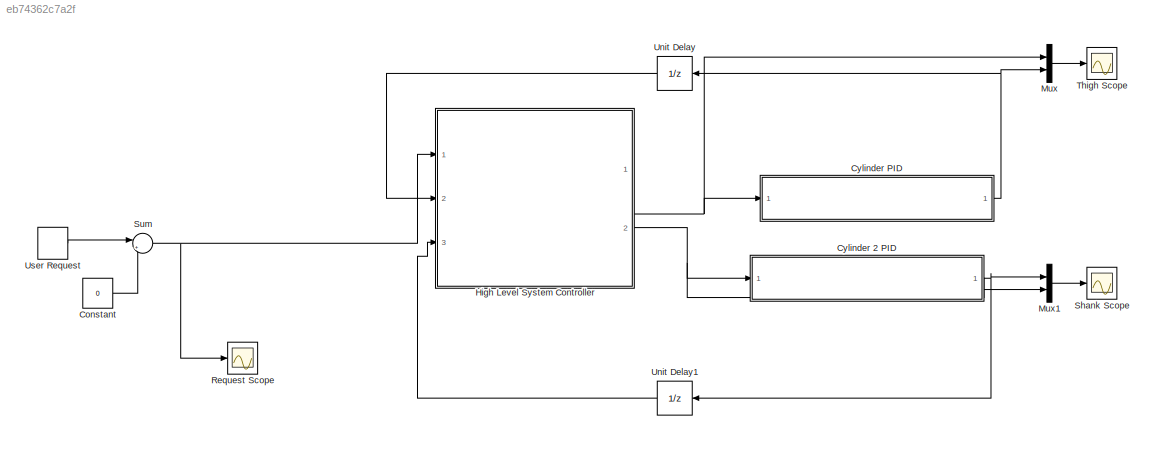
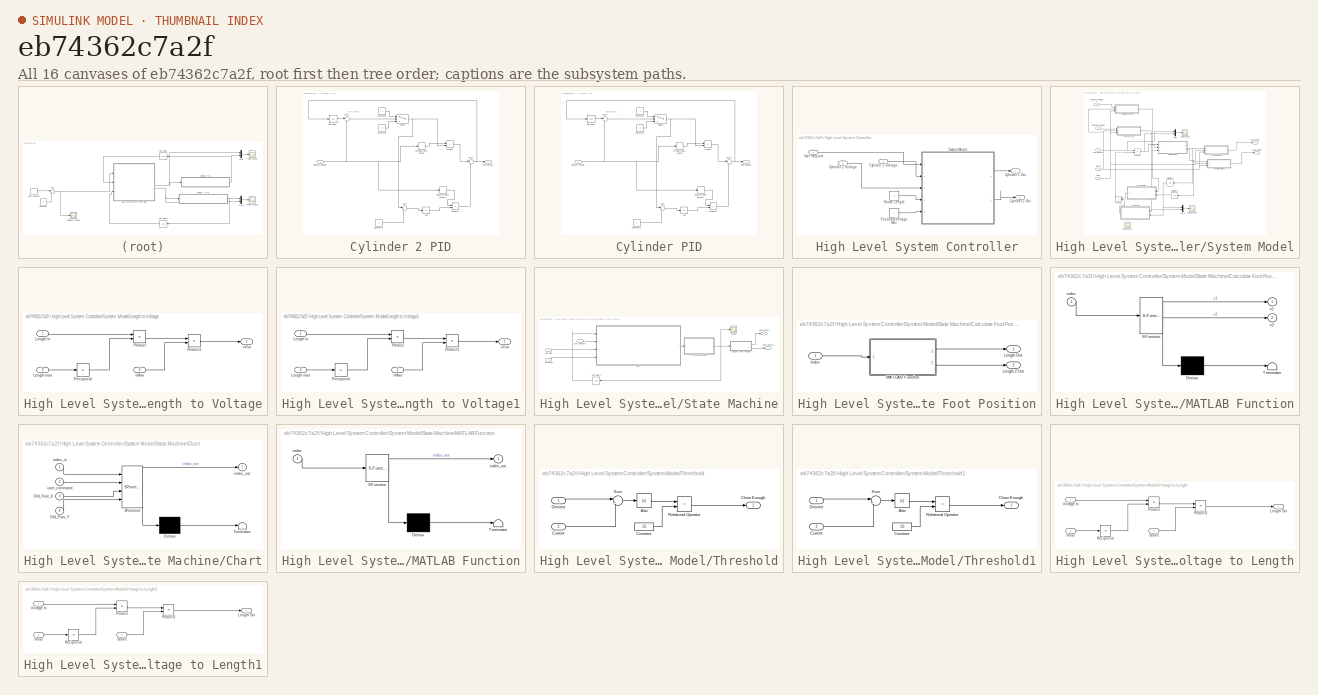
[diagram: thumbnail index - all 16 canvases of the model, root first then tree order]
MODEL slx_eb74362c7a2f
KIND model
BLOCK [Constant] Constant
  Value = 0
BLOCK [SubSystem] Cylinder 2 PID
  Ports = [1, 1]
  RequestExecContextInheritance = off
BLOCK [Abs] Cylinder 2 PID/Abs
  SaturateOnIntegerOverflow = off
BLOCK [Constant] Cylinder 2 PID/Constant1
BLOCK [Constant] Cylinder 2 PID/Constant2
  Value = 0
BLOCK [Constant] Cylinder 2 PID/Constant3
BLOCK [Inport] Cylinder 2 PID/Desired Voltage
  IconDisplay = Port number
BLOCK [Outport] Cylinder 2 PID/Final Voltage
  IconDisplay = Port number
BLOCK [RateLimiter] Cylinder 2 PID/Forward Rate Limiter
  FallingSlewLimit = -0.0015
  RisingSlewLimit = 0.0015
  SampleTimeMode = inherited
BLOCK [Product] Cylinder 2 PID/Product
  InputSameDT = off
  OutDataTypeStr = Inherit: Inherit via internal rule
  Ports = [2, 1]
  RndMeth = Floor
  SaturateOnIntegerOverflow = off
BLOCK [Product] Cylinder 2 PID/Product1
  InputSameDT = off
  OutDataTypeStr = Inherit: Inherit via internal rule
  Ports = [2, 1]
  RndMeth = Floor
  SaturateOnIntegerOverflow = off
BLOCK [RateLimiter] Cylinder 2 PID/Reverse Rate Limiter1
  FallingSlewLimit = -0.015
  RisingSlewLimit = 0.015
  SampleTimeMode = inherited
BLOCK [Sum] Cylinder 2 PID/Sum
  IconShape = round
  InputSameDT = off
  Inputs = |+-
  OutDataTypeStr = Inherit: Inherit via internal rule
  Ports = [2, 1]
  SaturateOnIntegerOverflow = off
BLOCK [Sum] Cylinder 2 PID/Sum1
  IconShape = round
  InputSameDT = off
  Inputs = |-+
  OutDataTypeStr = Inherit: Inherit via internal rule
  Ports = [2, 1]
  SaturateOnIntegerOverflow = off
BLOCK [Sum] Cylinder 2 PID/Sum2
  IconShape = round
  InputSameDT = off
  Inputs = |++
  OutDataTypeStr = Inherit: Inherit via internal rule
  Ports = [2, 1]
  SaturateOnIntegerOverflow = off
BLOCK [Switch] Cylinder 2 PID/Switch
  InputSameDT = off
  SaturateOnIntegerOverflow = off
BLOCK [UnitDelay] Cylinder 2 PID/Unit Delay
  InputProcessing = Elements as channels (sample based)
  SampleTime = -1
BLOCK [SubSystem] Cylinder PID
  Ports = [1, 1]
  RequestExecContextInheritance = off
BLOCK [Abs] Cylinder PID/Abs
  SaturateOnIntegerOverflow = off
BLOCK [Constant] Cylinder PID/Constant1
BLOCK [Constant] Cylinder PID/Constant2
  Value = 0
BLOCK [Constant] Cylinder PID/Constant3
BLOCK [Inport] Cylinder PID/Desired Voltage
  IconDisplay = Port number
BLOCK [Outport] Cylinder PID/Final Voltage
  IconDisplay = Port number
BLOCK [RateLimiter] Cylinder PID/Forward Rate Limiter
  FallingSlewLimit = -0.0015
  RisingSlewLimit = 0.0015
  SampleTimeMode = inherited
BLOCK [Product] Cylinder PID/Product
  InputSameDT = off
  OutDataTypeStr = Inherit: Inherit via internal rule
  Ports = [2, 1]
  RndMeth = Floor
  SaturateOnIntegerOverflow = off
BLOCK [Product] Cylinder PID/Product1
  InputSameDT = off
  OutDataTypeStr = Inherit: Inherit via internal rule
  Ports = [2, 1]
  RndMeth = Floor
  SaturateOnIntegerOverflow = off
BLOCK [RateLimiter] Cylinder PID/Reverse Rate Limiter1
  FallingSlewLimit = -0.05
  RisingSlewLimit = 0.05
  SampleTimeMode = inherited
BLOCK [Sum] Cylinder PID/Sum
  IconShape = round
  InputSameDT = off
  Inputs = |+-
  OutDataTypeStr = Inherit: Inherit via internal rule
  Ports = [2, 1]
  SaturateOnIntegerOverflow = off
BLOCK [Sum] Cylinder PID/Sum1
  IconShape = round
  InputSameDT = off
  Inputs = |-+
  OutDataTypeStr = Inherit: Inherit via internal rule
  Ports = [2, 1]
  SaturateOnIntegerOverflow = off
BLOCK [Sum] Cylinder PID/Sum2
  IconShape = round
  InputSameDT = off
  Inputs = |++
  OutDataTypeStr = Inherit: Inherit via internal rule
  Ports = [2, 1]
  SaturateOnIntegerOverflow = off
BLOCK [Switch] Cylinder PID/Switch
  InputSameDT = off
  SaturateOnIntegerOverflow = off
BLOCK [UnitDelay] Cylinder PID/Unit Delay
  InputProcessing = Elements as channels (sample based)
  SampleTime = -1
BLOCK [SubSystem] High Level System Controller
  Ports = [3, 2]
  RequestExecContextInheritance = off
BLOCK [Outport] High Level System Controller/Cylinder 1 Out
  IconDisplay = Port number
BLOCK [Inport] High Level System Controller/Cylinder 1 Voltage
  IconDisplay = Port number
  OutDataTypeStr = double
  Port = 2
BLOCK [Outport] High Level System Controller/Cylinder 2 Out
  IconDisplay = Port number
  Port = 2
BLOCK [Inport] High Level System Controller/Cylinder 2 Voltage
  IconDisplay = Port number
  OutDataTypeStr = double
  Port = 3
BLOCK [Constant] High Level System Controller/Feedback Voltage Max
  Value = 4
BLOCK [Constant] High Level System Controller/Stroke Length
  Value = 3
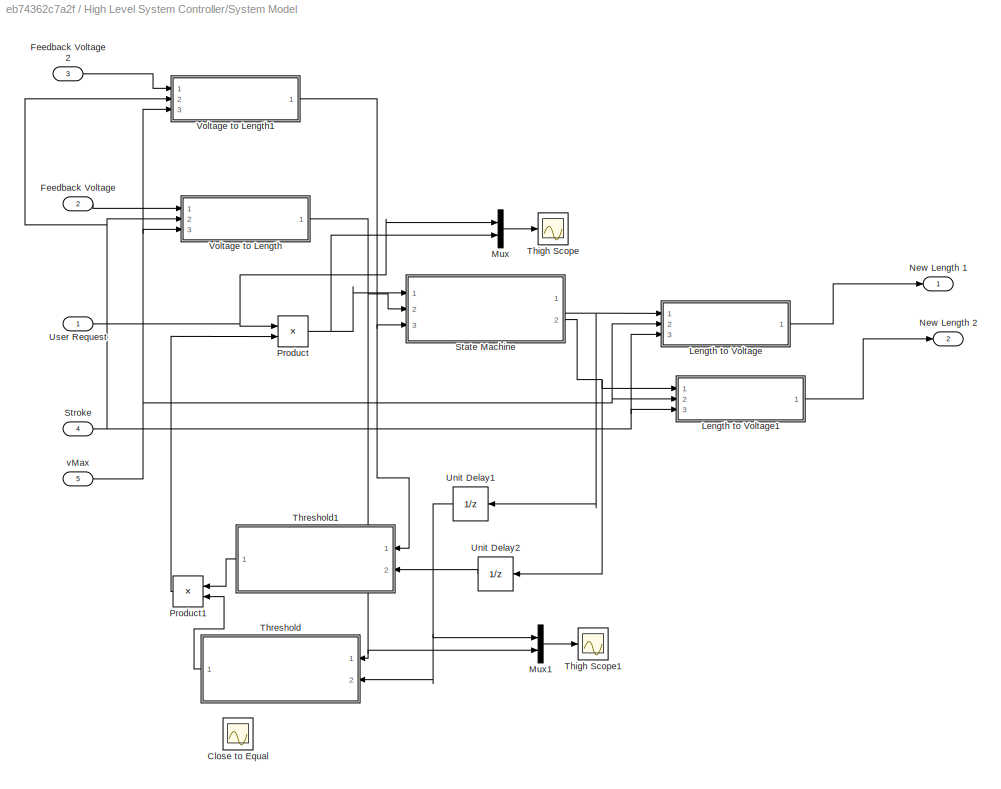
BLOCK [SubSystem] High Level System Controller/System Model
  Ports = [5, 2]
  RequestExecContextInheritance = off
BLOCK [Scope] High Level System Controller/System Model/Close to Equal
  Floating = off
  LimitDataPoints = off
  NumInputPorts = 1
  Ports = [1]
  SaveName = ScopeData5
  ShowLegends = off
  TimeRange = 1
  YMax = 2.8
  YMin = 2.53334
  ZoomMode = xonly
BLOCK [Inport] High Level System Controller/System Model/Feedback Voltage
  IconDisplay = Port number
  Port = 2
BLOCK [Inport] High Level System Controller/System Model/Feedback Voltage 2
  IconDisplay = Port number
  Port = 3
BLOCK [SubSystem] High Level System Controller/System Model/Length to Voltage
  Ports = [3, 1]
  RequestExecContextInheritance = off
BLOCK [Inport] High Level System Controller/System Model/Length to Voltage/Length In
  IconDisplay = Port number
BLOCK [Inport] High Level System Controller/System Model/Length to Voltage/Length max
  IconDisplay = Port number
  Port = 3
BLOCK [Product] High Level System Controller/System Model/Length to Voltage/Product
  InputSameDT = off
  Ports = [2, 1]
  RndMeth = Floor
  SaturateOnIntegerOverflow = off
BLOCK [Product] High Level System Controller/System Model/Length to Voltage/Product1
  InputSameDT = off
  Ports = [2, 1]
  RndMeth = Floor
  SaturateOnIntegerOverflow = off
BLOCK [Product] High Level System Controller/System Model/Length to Voltage/Reciprocal
  InputSameDT = off
  Inputs = /
  OutDataTypeStr = Inherit: Inherit via internal rule
  Ports = [1, 1]
BLOCK [Inport] High Level System Controller/System Model/Length to Voltage/vMax
  IconDisplay = Port number
  Port = 2
BLOCK [Outport] High Level System Controller/System Model/Length to Voltage/vOut
  IconDisplay = Port number
BLOCK [SubSystem] High Level System Controller/System Model/Length to Voltage1
  Ports = [3, 1]
  RequestExecContextInheritance = off
BLOCK [Inport] High Level System Controller/System Model/Length to Voltage1/Length In
  IconDisplay = Port number
BLOCK [Inport] High Level System Controller/System Model/Length to Voltage1/Length max
  IconDisplay = Port number
  Port = 3
BLOCK [Product] High Level System Controller/System Model/Length to Voltage1/Product
  InputSameDT = off
  Ports = [2, 1]
  RndMeth = Floor
  SaturateOnIntegerOverflow = off
BLOCK [Product] High Level System Controller/System Model/Length to Voltage1/Product1
  InputSameDT = off
  Ports = [2, 1]
  RndMeth = Floor
  SaturateOnIntegerOverflow = off
BLOCK [Product] High Level System Controller/System Model/Length to Voltage1/Reciprocal
  InputSameDT = off
  Inputs = /
  OutDataTypeStr = Inherit: Inherit via internal rule
  Ports = [1, 1]
BLOCK [Inport] High Level System Controller/System Model/Length to Voltage1/vMax
  IconDisplay = Port number
  Port = 2
BLOCK [Outport] High Level System Controller/System Model/Length to Voltage1/vOut
  IconDisplay = Port number
BLOCK [Mux] High Level System Controller/System Model/Mux
  DisplayOption = bar
  Inputs = 2
  Ports = [2, 1]
BLOCK [Mux] High Level System Controller/System Model/Mux1
  DisplayOption = bar
  Inputs = 2
  Ports = [2, 1]
BLOCK [Outport] High Level System Controller/System Model/New Length 1
  IconDisplay = Port number
  OutDataTypeStr = double
BLOCK [Outport] High Level System Controller/System Model/New Length 2
  IconDisplay = Port number
  OutDataTypeStr = double
  Port = 2
BLOCK [Product] High Level System Controller/System Model/Product
  InputSameDT = off
  OutDataTypeStr = Inherit: Inherit via internal rule
  Ports = [2, 1]
  RndMeth = Floor
  SaturateOnIntegerOverflow = off
BLOCK [Product] High Level System Controller/System Model/Product1
  InputSameDT = off
  OutDataTypeStr = Inherit: Inherit via internal rule
  Ports = [2, 1]
  RndMeth = Floor
  SaturateOnIntegerOverflow = off
BLOCK [SubSystem] High Level System Controller/System Model/State Machine
  Ports = [3, 2]
  RequestExecContextInheritance = off
BLOCK [SubSystem] High Level System Controller/System Model/State Machine/Calculate Foot Position
  Ports = [1, 2]
  RequestExecContextInheritance = off
BLOCK [Inport] High Level System Controller/System Model/State Machine/Calculate Foot Position/Index
  IconDisplay = Port number
BLOCK [Outport] High Level System Controller/System Model/State Machine/Calculate Foot Position/Length 2 Out
  IconDisplay = Port number
  Port = 2
BLOCK [Outport] High Level System Controller/System Model/State Machine/Calculate Foot Position/Length Out
  IconDisplay = Port number
BLOCK [SubSystem] High Level System Controller/System Model/State Machine/Calculate Foot Position/MATLAB Function
  ErrorFcn = Stateflow.Translate.translate
  PermitHierarchicalResolution = ExplicitOnly
  Ports = [1, 2]
  RequestExecContextInheritance = off
  SFBlockType = MATLAB Function
  TreatAsAtomicUnit = on
BLOCK [Demux] High Level System Controller/System Model/State Machine/Calculate Foot Position/MATLAB Function/ Demux 
  Outputs = 1
  Ports = [1, 1]
BLOCK [S-Function] High Level System Controller/System Model/State Machine/Calculate Foot Position/MATLAB Function/ SFunction 
  EnableBusSupport = on
  FunctionName = sf_sfun
  PortCounts = [1 3]
  Ports = [1, 3]
  Tag = Stateflow S-Function Simulation 1
BLOCK [Terminator] High Level System Controller/System Model/State Machine/Calculate Foot Position/MATLAB Function/ Terminator 
BLOCK [Inport] High Level System Controller/System Model/State Machine/Calculate Foot Position/MATLAB Function/index
  IconDisplay = Port number
BLOCK [Outport] High Level System Controller/System Model/State Machine/Calculate Foot Position/MATLAB Function/x1
  IconDisplay = Port number
BLOCK [Outport] High Level System Controller/System Model/State Machine/Calculate Foot Position/MATLAB Function/x2
  IconDisplay = Port number
  Port = 2
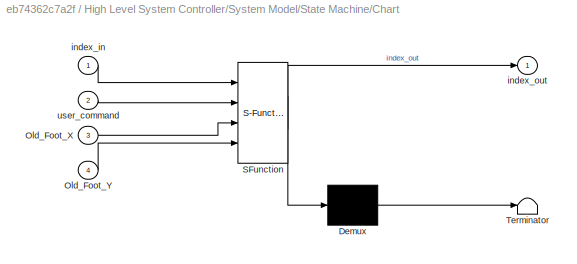
BLOCK [SubSystem] High Level System Controller/System Model/State Machine/Chart
  ErrorFcn = Stateflow.Translate.translate
  PermitHierarchicalResolution = ExplicitOnly
  Ports = [4, 1]
  RequestExecContextInheritance = off
  SFBlockType = Chart
  TreatAsAtomicUnit = on
BLOCK [Demux] High Level System Controller/System Model/State Machine/Chart/ Demux 
  Outputs = 1
  Ports = [1, 1]
BLOCK [S-Function] High Level System Controller/System Model/State Machine/Chart/ SFunction 
  EnableBusSupport = on
  FunctionName = sf_sfun
  PortCounts = [4 2]
  Ports = [4, 2]
  Tag = Stateflow S-Function Simulation 3
BLOCK [Terminator] High Level System Controller/System Model/State Machine/Chart/ Terminator 
BLOCK [Inport] High Level System Controller/System Model/State Machine/Chart/Old_Foot_X
  IconDisplay = Port number
  Port = 3
BLOCK [Inport] High Level System Controller/System Model/State Machine/Chart/Old_Foot_Y
  IconDisplay = Port number
  Port = 4
BLOCK [Inport] High Level System Controller/System Model/State Machine/Chart/index_in
  IconDisplay = Port number
BLOCK [Outport] High Level System Controller/System Model/State Machine/Chart/index_out
  IconDisplay = Port number
BLOCK [Inport] High Level System Controller/System Model/State Machine/Chart/user_command
  IconDisplay = Port number
  Port = 2
BLOCK [SubSystem] High Level System Controller/System Model/State Machine/MATLAB Function
  ErrorFcn = Stateflow.Translate.translate
  PermitHierarchicalResolution = ExplicitOnly
  Ports = [1, 1]
  RequestExecContextInheritance = off
  SFBlockType = MATLAB Function
  TreatAsAtomicUnit = on
BLOCK [Demux] High Level System Controller/System Model/State Machine/MATLAB Function/ Demux 
  Outputs = 1
  Ports = [1, 1]
BLOCK [S-Function] High Level System Controller/System Model/State Machine/MATLAB Function/ SFunction 
  EnableBusSupport = on
  FunctionName = sf_sfun
  PortCounts = [1 2]
  Ports = [1, 2]
  Tag = Stateflow S-Function Simulation 4
BLOCK [Terminator] High Level System Controller/System Model/State Machine/MATLAB Function/ Terminator 
BLOCK [Inport] High Level System Controller/System Model/State Machine/MATLAB Function/index
  IconDisplay = Port number
BLOCK [Outport] High Level System Controller/System Model/State Machine/MATLAB Function/index_out
  IconDisplay = Port number
BLOCK [Outport] High Level System Controller/System Model/State Machine/New Length
  IconDisplay = Port number
BLOCK [Outport] High Level System Controller/System Model/State Machine/New Length1
  IconDisplay = Port number
  Port = 2
BLOCK [Inport] High Level System Controller/System Model/State Machine/Old Shank
  IconDisplay = Port number
  Port = 3
BLOCK [Inport] High Level System Controller/System Model/State Machine/Old Thigh
  IconDisplay = Port number
  Port = 2
BLOCK [Scope] High Level System Controller/System Model/State Machine/Scope
  DataFormat = StructureWithTime
  Floating = off
  LimitDataPoints = off
  NumInputPorts = 1
  Ports = [1]
  SampleTime = 0
  SaveName = ScopeData2
  ShowLegends = off
BLOCK [UnitDelay] High Level System Controller/System Model/State Machine/Unit Delay1
  InputProcessing = Elements as channels (sample based)
  SampleTime = -1
BLOCK [Inport] High Level System Controller/System Model/State Machine/User Request
  IconDisplay = Port number
BLOCK [Inport] High Level System Controller/System Model/Stroke
  IconDisplay = Port number
  Port = 4
BLOCK [Scope] High Level System Controller/System Model/Thigh Scope
  Floating = off
  LimitDataPoints = off
  NumInputPorts = 1
  Ports = [1]
  SaveName = ScopeData3
  ShowLegends = off
  TimeRange = 1
  YMax = 2.8
  YMin = 2.53334
  ZoomMode = xonly
BLOCK [Scope] High Level System Controller/System Model/Thigh Scope1
  Floating = off
  LimitDataPoints = off
  NumInputPorts = 1
  Ports = [1]
  SaveName = ScopeData4
  ShowLegends = off
  TimeRange = 1
  YMax = 2.8
  YMin = 2.53334
  ZoomMode = xonly
BLOCK [SubSystem] High Level System Controller/System Model/Threshold
  Ports = [2, 1]
  RequestExecContextInheritance = off
BLOCK [Abs] High Level System Controller/System Model/Threshold/Abs
  SaturateOnIntegerOverflow = off
BLOCK [Outport] High Level System Controller/System Model/Threshold/Close Enough
  IconDisplay = Port number
BLOCK [Constant] High Level System Controller/System Model/Threshold/Constant
  Value = .05
BLOCK [Inport] High Level System Controller/System Model/Threshold/Current
  IconDisplay = Port number
  Port = 2
BLOCK [Inport] High Level System Controller/System Model/Threshold/Desired
  IconDisplay = Port number
BLOCK [RelationalOperator] High Level System Controller/System Model/Threshold/Relational Operator
  InputSameDT = off
  Operator = <
  OutDataTypeStr = boolean
  Ports = [2, 1]
BLOCK [Sum] High Level System Controller/System Model/Threshold/Sum
  IconShape = round
  InputSameDT = off
  Inputs = |+-
  OutDataTypeStr = Inherit: Inherit via internal rule
  Ports = [2, 1]
  SaturateOnIntegerOverflow = off
BLOCK [SubSystem] High Level System Controller/System Model/Threshold1
  Ports = [2, 1]
  RequestExecContextInheritance = off
BLOCK [Abs] High Level System Controller/System Model/Threshold1/Abs
  SaturateOnIntegerOverflow = off
BLOCK [Outport] High Level System Controller/System Model/Threshold1/Close Enough
  IconDisplay = Port number
BLOCK [Constant] High Level System Controller/System Model/Threshold1/Constant
  Value = .05
BLOCK [Inport] High Level System Controller/System Model/Threshold1/Current
  IconDisplay = Port number
  Port = 2
BLOCK [Inport] High Level System Controller/System Model/Threshold1/Desired
  IconDisplay = Port number
BLOCK [RelationalOperator] High Level System Controller/System Model/Threshold1/Relational Operator
  InputSameDT = off
  Operator = <
  OutDataTypeStr = boolean
  Ports = [2, 1]
BLOCK [Sum] High Level System Controller/System Model/Threshold1/Sum
  IconShape = round
  InputSameDT = off
  Inputs = |+-
  OutDataTypeStr = Inherit: Inherit via internal rule
  Ports = [2, 1]
  SaturateOnIntegerOverflow = off
BLOCK [UnitDelay] High Level System Controller/System Model/Unit Delay1
  InputProcessing = Elements as channels (sample based)
  SampleTime = -1
BLOCK [UnitDelay] High Level System Controller/System Model/Unit Delay2
  InputProcessing = Elements as channels (sample based)
  SampleTime = -1
BLOCK [Inport] High Level System Controller/System Model/User Request
  IconDisplay = Port number
BLOCK [SubSystem] High Level System Controller/System Model/Voltage to Length
  Ports = [3, 1]
  RequestExecContextInheritance = off
BLOCK [Outport] High Level System Controller/System Model/Voltage to Length/Length Out
  IconDisplay = Port number
BLOCK [Product] High Level System Controller/System Model/Voltage to Length/Product
  InputSameDT = off
  OutDataTypeStr = Inherit: Inherit via internal rule
  Ports = [2, 1]
  RndMeth = Floor
  SaturateOnIntegerOverflow = off
BLOCK [Product] High Level System Controller/System Model/Voltage to Length/Product1
  InputSameDT = off
  OutDataTypeStr = Inherit: Inherit via internal rule
  Ports = [2, 1]
  RndMeth = Floor
  SaturateOnIntegerOverflow = off
BLOCK [Product] High Level System Controller/System Model/Voltage to Length/Reciprocal
  InputSameDT = off
  Inputs = /
  OutDataTypeStr = Inherit: Inherit via internal rule
  Ports = [1, 1]
BLOCK [Inport] High Level System Controller/System Model/Voltage to Length/Stroke
  IconDisplay = Port number
  Port = 2
BLOCK [Inport] High Level System Controller/System Model/Voltage to Length/Vmax
  IconDisplay = Port number
  Port = 3
BLOCK [Inport] High Level System Controller/System Model/Voltage to Length/Voltage In
  IconDisplay = Port number
BLOCK [SubSystem] High Level System Controller/System Model/Voltage to Length1
  Ports = [3, 1]
  RequestExecContextInheritance = off
BLOCK [Outport] High Level System Controller/System Model/Voltage to Length1/Length Out
  IconDisplay = Port number
BLOCK [Product] High Level System Controller/System Model/Voltage to Length1/Product
  InputSameDT = off
  OutDataTypeStr = Inherit: Inherit via internal rule
  Ports = [2, 1]
  RndMeth = Floor
  SaturateOnIntegerOverflow = off
BLOCK [Product] High Level System Controller/System Model/Voltage to Length1/Product1
  InputSameDT = off
  OutDataTypeStr = Inherit: Inherit via internal rule
  Ports = [2, 1]
  RndMeth = Floor
  SaturateOnIntegerOverflow = off
BLOCK [Product] High Level System Controller/System Model/Voltage to Length1/Reciprocal
  InputSameDT = off
  Inputs = /
  OutDataTypeStr = Inherit: Inherit via internal rule
  Ports = [1, 1]
BLOCK [Inport] High Level System Controller/System Model/Voltage to Length1/Stroke
  IconDisplay = Port number
  Port = 2
BLOCK [Inport] High Level System Controller/System Model/Voltage to Length1/Vmax
  IconDisplay = Port number
  Port = 3
BLOCK [Inport] High Level System Controller/System Model/Voltage to Length1/Voltage In
  IconDisplay = Port number
BLOCK [Inport] High Level System Controller/System Model/vMax
  IconDisplay = Port number
  Port = 5
BLOCK [Inport] High Level System Controller/User Request
  IconDisplay = Port number
BLOCK [Mux] Mux
  DisplayOption = bar
  Inputs = 2
  Ports = [2, 1]
BLOCK [Mux] Mux1
  DisplayOption = bar
  Inputs = 2
  Ports = [2, 1]
BLOCK [Scope] Request Scope
  Floating = off
  LimitDataPoints = off
  NumInputPorts = 1
  Ports = [1]
  SaveName = ScopeData1
  ShowLegends = off
  TimeRange = 1
  YMax = 1.05
  YMin = 0.95
BLOCK [Scope] Shank Scope
  Floating = off
  LimitDataPoints = off
  NumInputPorts = 1
  Ports = [1]
  SaveName = ScopeData6
  ShowLegends = off
  TimeRange = 1
  YMax = 2
  YMin = 1.88
  ZoomMode = xonly
BLOCK [Sum] Sum
  IconShape = round
  InputSameDT = off
  Inputs = |+-
  OutDataTypeStr = Inherit: Inherit via internal rule
  Ports = [2, 1]
  SaturateOnIntegerOverflow = off
BLOCK [Scope] Thigh Scope
  Floating = off
  LimitDataPoints = off
  NumInputPorts = 1
  Ports = [1]
  ShowLegends = off
  TimeRange = 1
  YMax = 2
  YMin = 1.88
  ZoomMode = xonly
BLOCK [UnitDelay] Unit Delay
  InputProcessing = Elements as channels (sample based)
  SampleTime = -1
BLOCK [UnitDelay] Unit Delay1
  InputProcessing = Elements as channels (sample based)
  SampleTime = -1
BLOCK [DiscretePulseGenerator] User Request
  Period = 250
  Ports = [0, 1]
  PulseType = Time based
  PulseWidth = 50
ANNOTATION Cylinder 2 PID: PID Output
ANNOTATION Cylinder PID: PID Output
LINE Constant:1 -> Sum:2
LINE Cylinder 2 PID/Abs:1 -> Cylinder 2 PID/Product1:2
LINE Cylinder 2 PID/Constant1:1 -> Cylinder 2 PID/Switch:1
LINE Cylinder 2 PID/Constant2:1 -> Cylinder 2 PID/Switch:3
LINE Cylinder 2 PID/Constant3:1 -> Cylinder 2 PID/Sum:2
NET Cylinder 2 PID/Desired Voltage:1 -> Cylinder 2 PID/Forward Rate Limiter:1, Cylinder 2 PID/Reverse Rate Limiter1:1, Cylinder 2 PID/Sum1:2
LINE Cylinder 2 PID/Forward Rate Limiter:1 -> Cylinder 2 PID/Product:1
LINE Cylinder 2 PID/Product1:1 -> Cylinder 2 PID/Sum2:2
LINE Cylinder 2 PID/Product:1 -> Cylinder 2 PID/Sum2:1
LINE Cylinder 2 PID/Reverse Rate Limiter1:1 -> Cylinder 2 PID/Product1:1
LINE Cylinder 2 PID/Sum1:1 -> Cylinder 2 PID/Switch:2
NET Cylinder 2 PID/Sum2:1 -> Cylinder 2 PID/Final Voltage:1, Cylinder 2 PID/Unit Delay:1
LINE Cylinder 2 PID/Sum:1 -> Cylinder 2 PID/Abs:1
NET Cylinder 2 PID/Switch:1 -> Cylinder 2 PID/Product:2, Cylinder 2 PID/Sum:1
LINE Cylinder 2 PID/Unit Delay:1 -> Cylinder 2 PID/Sum1:1
NET Cylinder 2 PID:1 -> Mux1:1, Unit Delay1:1
LINE Cylinder PID/Abs:1 -> Cylinder PID/Product1:2
LINE Cylinder PID/Constant1:1 -> Cylinder PID/Switch:1
LINE Cylinder PID/Constant2:1 -> Cylinder PID/Switch:3
LINE Cylinder PID/Constant3:1 -> Cylinder PID/Sum:2
NET Cylinder PID/Desired Voltage:1 -> Cylinder PID/Forward Rate Limiter:1, Cylinder PID/Reverse Rate Limiter1:1, Cylinder PID/Sum1:2
LINE Cylinder PID/Forward Rate Limiter:1 -> Cylinder PID/Product:1
LINE Cylinder PID/Product1:1 -> Cylinder PID/Sum2:2
LINE Cylinder PID/Product:1 -> Cylinder PID/Sum2:1
LINE Cylinder PID/Reverse Rate Limiter1:1 -> Cylinder PID/Product1:1
LINE Cylinder PID/Sum1:1 -> Cylinder PID/Switch:2
NET Cylinder PID/Sum2:1 -> Cylinder PID/Final Voltage:1, Cylinder PID/Unit Delay:1
LINE Cylinder PID/Sum:1 -> Cylinder PID/Abs:1
NET Cylinder PID/Switch:1 -> Cylinder PID/Product:2, Cylinder PID/Sum:1
LINE Cylinder PID/Unit Delay:1 -> Cylinder PID/Sum1:1
NET Cylinder PID:1 -> Mux:2, Unit Delay:1
LINE High Level System Controller/Cylinder 1 Voltage:1 -> High Level System Controller/System Model:2
LINE High Level System Controller/Cylinder 2 Voltage:1 -> High Level System Controller/System Model:3
LINE High Level System Controller/Feedback Voltage Max:1 -> High Level System Controller/System Model:5
LINE High Level System Controller/Stroke Length:1 -> High Level System Controller/System Model:4
LINE High Level System Controller/System Model/Feedback Voltage 2:1 -> High Level System Controller/System Model/Voltage to Length1:1
LINE High Level System Controller/System Model/Feedback Voltage:1 -> High Level System Controller/System Model/Voltage to Length:1
LINE High Level System Controller/System Model/Length to Voltage/Length In:1 -> High Level System Controller/System Model/Length to Voltage/Product:1
LINE High Level System Controller/System Model/Length to Voltage/Length max:1 -> High Level System Controller/System Model/Length to Voltage/Reciprocal:1
LINE High Level System Controller/System Model/Length to Voltage/Product1:1 -> High Level System Controller/System Model/Length to Voltage/vOut:1
LINE High Level System Controller/System Model/Length to Voltage/Product:1 -> High Level System Controller/System Model/Length to Voltage/Product1:1
LINE High Level System Controller/System Model/Length to Voltage/Reciprocal:1 -> High Level System Controller/System Model/Length to Voltage/Product:2
LINE High Level System Controller/System Model/Length to Voltage/vMax:1 -> High Level System Controller/System Model/Length to Voltage/Product1:2
LINE High Level System Controller/System Model/Length to Voltage1/Length In:1 -> High Level System Controller/System Model/Length to Voltage1/Product:1
LINE High Level System Controller/System Model/Length to Voltage1/Length max:1 -> High Level System Controller/System Model/Length to Voltage1/Reciprocal:1
LINE High Level System Controller/System Model/Length to Voltage1/Product1:1 -> High Level System Controller/System Model/Length to Voltage1/vOut:1
LINE High Level System Controller/System Model/Length to Voltage1/Product:1 -> High Level System Controller/System Model/Length to Voltage1/Product1:1
LINE High Level System Controller/System Model/Length to Voltage1/Reciprocal:1 -> High Level System Controller/System Model/Length to Voltage1/Product:2
LINE High Level System Controller/System Model/Length to Voltage1/vMax:1 -> High Level System Controller/System Model/Length to Voltage1/Product1:2
LINE High Level System Controller/System Model/Length to Voltage1:1 -> High Level System Controller/System Model/New Length 2:1
LINE High Level System Controller/System Model/Length to Voltage:1 -> High Level System Controller/System Model/New Length 1:1
LINE High Level System Controller/System Model/Mux1:1 -> High Level System Controller/System Model/Thigh Scope1:1
LINE High Level System Controller/System Model/Mux:1 -> High Level System Controller/System Model/Thigh Scope:1
LINE High Level System Controller/System Model/Product1:1 -> High Level System Controller/System Model/Product:2
NET High Level System Controller/System Model/Product:1 -> High Level System Controller/System Model/Mux:2, High Level System Controller/System Model/State Machine:1
LINE High Level System Controller/System Model/State Machine/Calculate Foot Position/Index:1 -> High Level System Controller/System Model/State Machine/Calculate Foot Position/MATLAB Function:1
LINE High Level System Controller/System Model/State Machine/Calculate Foot Position/MATLAB Function:1 -> High Level System Controller/System Model/State Machine/Calculate Foot Position/Length Out:1
LINE High Level System Controller/System Model/State Machine/Calculate Foot Position/MATLAB Function:2 -> High Level System Controller/System Model/State Machine/Calculate Foot Position/Length 2 Out:1
LINE High Level System Controller/System Model/State Machine/Calculate Foot Position:1 -> High Level System Controller/System Model/State Machine/New Length:1
LINE High Level System Controller/System Model/State Machine/Calculate Foot Position:2 -> High Level System Controller/System Model/State Machine/New Length1:1
LINE High Level System Controller/System Model/State Machine/Chart:1 -> High Level System Controller/System Model/State Machine/MATLAB Function:1
NET High Level System Controller/System Model/State Machine/MATLAB Function:1 -> High Level System Controller/System Model/State Machine/Calculate Foot Position:1, High Level System Controller/System Model/State Machine/Scope:1, High Level System Controller/System Model/State Machine/Unit Delay1:1
LINE High Level System Controller/System Model/State Machine/Old Shank:1 -> High Level System Controller/System Model/State Machine/Chart:4
LINE High Level System Controller/System Model/State Machine/Old Thigh:1 -> High Level System Controller/System Model/State Machine/Chart:3
LINE High Level System Controller/System Model/State Machine/Unit Delay1:1 -> High Level System Controller/System Model/State Machine/Chart:1
LINE High Level System Controller/System Model/State Machine/User Request:1 -> High Level System Controller/System Model/State Machine/Chart:2
NET High Level System Controller/System Model/State Machine:1 -> High Level System Controller/System Model/Length to Voltage:1, High Level System Controller/System Model/Unit Delay1:1
NET High Level System Controller/System Model/State Machine:2 -> High Level System Controller/System Model/Length to Voltage1:1, High Level System Controller/System Model/Unit Delay2:1
NET High Level System Controller/System Model/Stroke:1 -> High Level System Controller/System Model/Length to Voltage1:3, High Level System Controller/System Model/Length to Voltage:3, High Level System Controller/System Model/Voltage to Length1:2, High Level System Controller/System Model/Voltage to Length:2
LINE High Level System Controller/System Model/Threshold/Abs:1 -> High Level System Controller/System Model/Threshold/Relational Operator:1
LINE High Level System Controller/System Model/Threshold/Constant:1 -> High Level System Controller/System Model/Threshold/Relational Operator:2
LINE High Level System Controller/System Model/Threshold/Current:1 -> High Level System Controller/System Model/Threshold/Sum:2
LINE High Level System Controller/System Model/Threshold/Desired:1 -> High Level System Controller/System Model/Threshold/Sum:1
LINE High Level System Controller/System Model/Threshold/Relational Operator:1 -> High Level System Controller/System Model/Threshold/Close Enough:1
LINE High Level System Controller/System Model/Threshold/Sum:1 -> High Level System Controller/System Model/Threshold/Abs:1
LINE High Level System Controller/System Model/Threshold1/Abs:1 -> High Level System Controller/System Model/Threshold1/Relational Operator:1
LINE High Level System Controller/System Model/Threshold1/Constant:1 -> High Level System Controller/System Model/Threshold1/Relational Operator:2
LINE High Level System Controller/System Model/Threshold1/Current:1 -> High Level System Controller/System Model/Threshold1/Sum:2
LINE High Level System Controller/System Model/Threshold1/Desired:1 -> High Level System Controller/System Model/Threshold1/Sum:1
LINE High Level System Controller/System Model/Threshold1/Relational Operator:1 -> High Level System Controller/System Model/Threshold1/Close Enough:1
LINE High Level System Controller/System Model/Threshold1/Sum:1 -> High Level System Controller/System Model/Threshold1/Abs:1
LINE High Level System Controller/System Model/Threshold1:1 -> High Level System Controller/System Model/Product1:1
LINE High Level System Controller/System Model/Threshold:1 -> High Level System Controller/System Model/Product1:2
NET High Level System Controller/System Model/Unit Delay1:1 -> High Level System Controller/System Model/Mux1:1, High Level System Controller/System Model/Threshold:2
LINE High Level System Controller/System Model/Unit Delay2:1 -> High Level System Controller/System Model/Threshold1:2
NET High Level System Controller/System Model/User Request:1 -> High Level System Controller/System Model/Mux:1, High Level System Controller/System Model/Product:1
LINE High Level System Controller/System Model/Voltage to Length/Product1:1 -> High Level System Controller/System Model/Voltage to Length/Length Out:1
LINE High Level System Controller/System Model/Voltage to Length/Product:1 -> High Level System Controller/System Model/Voltage to Length/Product1:1
LINE High Level System Controller/System Model/Voltage to Length/Reciprocal:1 -> High Level System Controller/System Model/Voltage to Length/Product:2
LINE High Level System Controller/System Model/Voltage to Length/Stroke:1 -> High Level System Controller/System Model/Voltage to Length/Product1:2
LINE High Level System Controller/System Model/Voltage to Length/Vmax:1 -> High Level System Controller/System Model/Voltage to Length/Reciprocal:1
LINE High Level System Controller/System Model/Voltage to Length/Voltage In:1 -> High Level System Controller/System Model/Voltage to Length/Product:1
LINE High Level System Controller/System Model/Voltage to Length1/Product1:1 -> High Level System Controller/System Model/Voltage to Length1/Length Out:1
LINE High Level System Controller/System Model/Voltage to Length1/Product:1 -> High Level System Controller/System Model/Voltage to Length1/Product1:1
LINE High Level System Controller/System Model/Voltage to Length1/Reciprocal:1 -> High Level System Controller/System Model/Voltage to Length1/Product:2
LINE High Level System Controller/System Model/Voltage to Length1/Stroke:1 -> High Level System Controller/System Model/Voltage to Length1/Product1:2
LINE High Level System Controller/System Model/Voltage to Length1/Vmax:1 -> High Level System Controller/System Model/Voltage to Length1/Reciprocal:1
LINE High Level System Controller/System Model/Voltage to Length1/Voltage In:1 -> High Level System Controller/System Model/Voltage to Length1/Product:1
NET High Level System Controller/System Model/Voltage to Length1:1 -> High Level System Controller/System Model/State Machine:3, High Level System Controller/System Model/Threshold1:1
NET High Level System Controller/System Model/Voltage to Length:1 -> High Level System Controller/System Model/Mux1:2, High Level System Controller/System Model/State Machine:2, High Level System Controller/System Model/Threshold:1
NET High Level System Controller/System Model/vMax:1 -> High Level System Controller/System Model/Length to Voltage1:2, High Level System Controller/System Model/Length to Voltage:2, High Level System Controller/System Model/Voltage to Length1:3, High Level System Controller/System Model/Voltage to Length:3
LINE High Level System Controller/System Model:1 -> High Level System Controller/Cylinder 1 Out:1
LINE High Level System Controller/System Model:2 -> High Level System Controller/Cylinder 2 Out:1
LINE High Level System Controller/User Request:1 -> High Level System Controller/System Model:1
NET High Level System Controller:1 -> Cylinder PID:1, Mux:1
NET High Level System Controller:2 -> Cylinder 2 PID:1, Mux1:2
LINE Mux1:1 -> Shank Scope:1
LINE Mux:1 -> Thigh Scope:1
NET Sum:1 -> High Level System Controller:1, Request Scope:1
LINE Unit Delay1:1 -> High Level System Controller:3
LINE Unit Delay:1 -> High Level System Controller:2
LINE User Request:1 -> Sum:1
note: NET lines group one-source signal fan-out (src -> all destinations, sorted); 1:1 wires keep LINE
